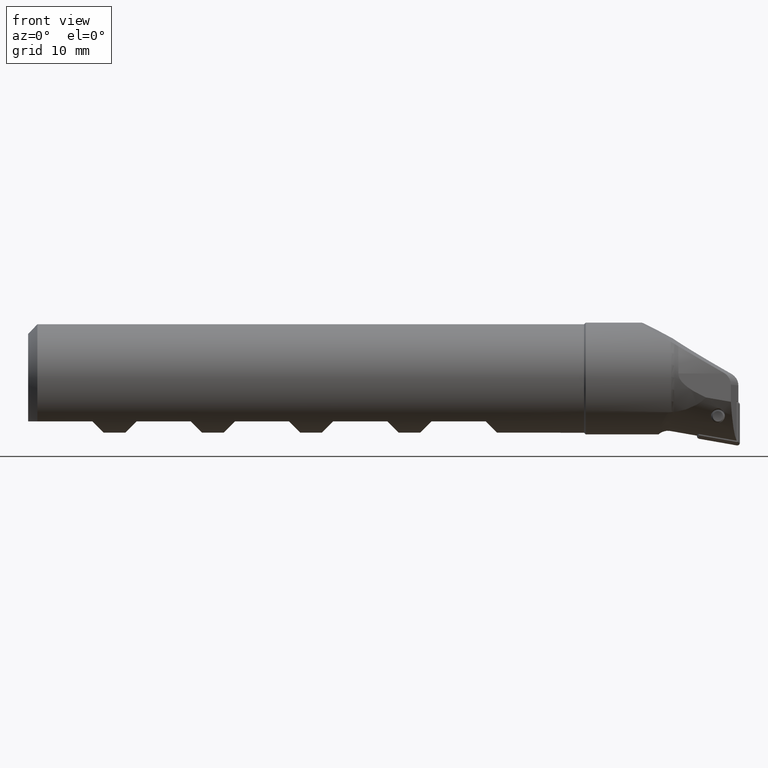
[diagram: clean part render]
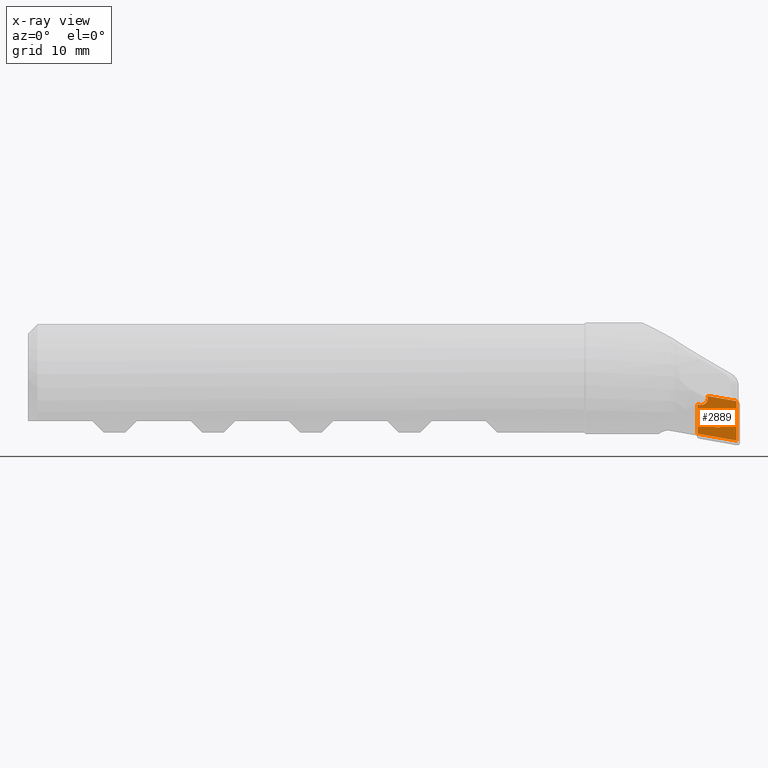
[diagram: x-ray — body ghosted, one internal face saturated and labeled with its STEP entity id]
A machine part, front view, then the same camera in x-ray: the body is ghosted and one INTERNAL B-rep face — a face not visible from any outside direction — is saturated and labeled: STEP entity #2889.
In plain terms, the highlighted planar face has unit normal (0, 0.9962, -0.0872).
Its self-contained STEP definition (entity closure, byte-faithful):
#71 = DIRECTION ( 'NONE',  ( 5.551115123125780900E-017, 0.08715574274765834600, 0.9961946980917455500 ) ) ;
#83 = CIRCLE ( 'NONE', #3790, 1.000000000000001100 ) ;
#118 = DIRECTION ( 'NONE',  ( -5.551115123125780900E-017, -0.08715574274765840200, -0.9961946980917455500 ) ) ;
#219 = EDGE_CURVE ( 'NONE', #3745, #3745, #1763, .T. ) ;
#258 = DIRECTION ( 'NONE',  ( 0.9848077530122072400, -0.01513443590133892500, -0.1729873939250938000 ) ) ;
#266 = LINE ( 'NONE', #2040, #3303 ) ;
#377 = CARTESIAN_POINT ( 'NONE',  ( 101.7580504135946700, -2.040892982909329400, -5.895076014298217300 ) ) ;
#608 = VERTEX_POINT ( 'NONE', #3611 ) ;
#647 = DIRECTION ( 'NONE',  ( 5.551115123125780900E-017, 0.08715574274765838800, 0.9961946980917455500 ) ) ;
#685 = DIRECTION ( 'NONE',  ( 1.757516169803486500E-016, 0.9961946980917456600, -0.08715574274765831900 ) ) ;
#687 = VERTEX_POINT ( 'NONE', #1224 ) ;
#903 = LINE ( 'NONE', #2023, #1214 ) ;
#996 = ORIENTED_EDGE ( 'NONE', *, *, #3507, .T. ) ;
#1030 = AXIS2_PLACEMENT_3D ( 'NONE', #377, #685, #1577 ) ;
#1039 = EDGE_LOOP ( 'NONE', ( #3294, #1924, #3558, #996, #1069 ) ) ;
#1045 = DIRECTION ( 'NONE',  ( 1.603235861290755700E-016, 0.9961946980917456600, -0.08715574274765833200 ) ) ;
#1069 = ORIENTED_EDGE ( 'NONE', *, *, #3128, .T. ) ;
#1214 = VECTOR ( 'NONE', #258, 1000.000000000000000 ) ;
#1224 = CARTESIAN_POINT ( 'NONE',  ( 98.75805041359463100, -2.239130266852563900, -8.160938538126639900 ) ) ;
#1245 = CARTESIAN_POINT ( 'NONE',  ( 98.75805041359461700, -1.856701646377665100, -3.789759404025663700 ) ) ;
#1347 = EDGE_CURVE ( 'NONE', #687, #608, #2991, .T. ) ;
#1361 = CARTESIAN_POINT ( 'NONE',  ( 106.0552231601916200, -2.351272553361349000, -9.442730738273313700 ) ) ;
#1526 = DIRECTION ( 'NONE',  ( 1.603235861290755400E-016, 0.9961946980917455500, -0.08715574274765838800 ) ) ;
#1568 = EDGE_LOOP ( 'NONE', ( #2947 ) ) ;
#1577 = DIRECTION ( 'NONE',  ( 0.0000000000000000000, 0.08715574274765838800, 0.9961946980917454300 ) ) ;
#1685 = AXIS2_PLACEMENT_3D ( 'NONE', #2686, #1526, #647 ) ;
#1763 = CIRCLE ( 'NONE', #1030, 1.350000000000004800 ) ;
#1813 = EDGE_CURVE ( 'NONE', #687, #1879, #266, .T. ) ;
#1879 = VERTEX_POINT ( 'NONE', #1245 ) ;
#1924 = ORIENTED_EDGE ( 'NONE', *, *, #1813, .T. ) ;
#2023 = CARTESIAN_POINT ( 'NONE',  ( 98.75805041359461700, -1.729288474305122900, -2.333420183175762800 ) ) ;
#2040 = CARTESIAN_POINT ( 'NONE',  ( 98.75805041359461700, -2.370202899698047100, -9.659105587011197300 ) ) ;
#2108 = PLANE ( 'NONE',  #1685 ) ;
#2112 = FACE_BOUND ( 'NONE', #1568, .T. ) ;
#2170 = CARTESIAN_POINT ( 'NONE',  ( 99.25805041359464600, -1.781222559072490800, -2.927029488362840900 ) ) ;
#2201 = VECTOR ( 'NONE', #3712, 999.9999999999998900 ) ;
#2635 = CARTESIAN_POINT ( 'NONE',  ( 100.1977430343805700, -1.751413539446276200, -2.586310834941246900 ) ) ;
#2686 = CARTESIAN_POINT ( 'NONE',  ( 105.0000000000001000, -1.825214187344943700, -3.429856100400622900 ) ) ;
#2801 = VERTEX_POINT ( 'NONE', #3415 ) ;
#2840 = FACE_OUTER_BOUND ( 'NONE', #1039, .T. ) ;
#2889 = ADVANCED_FACE ( 'NONE', ( #2840, #2112 ), #2108, .T. ) ;
#2899 = VECTOR ( 'NONE', #118, 1000.000000000000100 ) ;
#2935 = EDGE_CURVE ( 'NONE', #3589, #1879, #83, .T. ) ;
#2947 = ORIENTED_EDGE ( 'NONE', *, *, #219, .F. ) ;
#2991 = LINE ( 'NONE', #1361, #2201 ) ;
#3101 = DIRECTION ( 'NONE',  ( 0.0000000000000000000, 0.08715574274765841600, 0.9961946980917455500 ) ) ;
#3128 = EDGE_CURVE ( 'NONE', #2801, #608, #3654, .T. ) ;
#3149 = CARTESIAN_POINT ( 'NONE',  ( 101.7580504135946700, -1.923232730199990100, -4.550213171874355900 ) ) ;
#3294 = ORIENTED_EDGE ( 'NONE', *, *, #1347, .F. ) ;
#3303 = VECTOR ( 'NONE', #71, 1000.000000000000100 ) ;
#3415 = CARTESIAN_POINT ( 'NONE',  ( 104.5077727450511600, -1.817649683698280900, -3.343393428074916700 ) ) ;
#3507 = EDGE_CURVE ( 'NONE', #3589, #2801, #903, .T. ) ;
#3558 = ORIENTED_EDGE ( 'NONE', *, *, #2935, .F. ) ;
#3589 = VERTEX_POINT ( 'NONE', #2635 ) ;
#3599 = CARTESIAN_POINT ( 'NONE',  ( 104.5077727450511400, -2.458099124206000900, -10.66376403035231700 ) ) ;
#3611 = CARTESIAN_POINT ( 'NONE',  ( 104.5077727450511600, -2.327491476245728800, -9.170911783025772500 ) ) ;
#3654 = LINE ( 'NONE', #3599, #2899 ) ;
#3712 = DIRECTION ( 'NONE',  ( 0.9848077530122073500, -0.01513443590133887700, -0.1729873939250936900 ) ) ;
#3745 = VERTEX_POINT ( 'NONE', #3149 ) ;
#3790 = AXIS2_PLACEMENT_3D ( 'NONE', #2170, #1045, #3101 ) ;